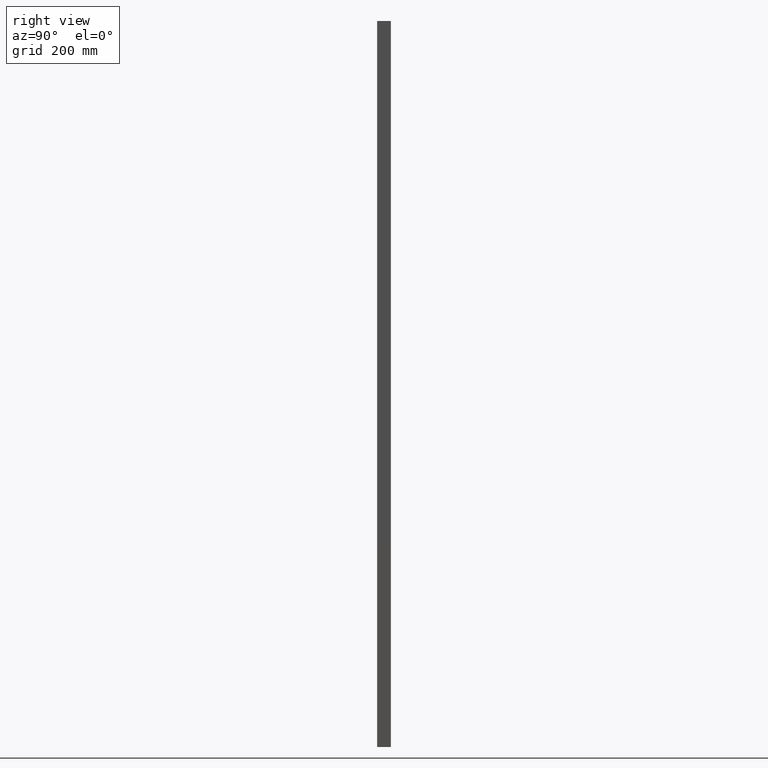
[diagram: clean part render]
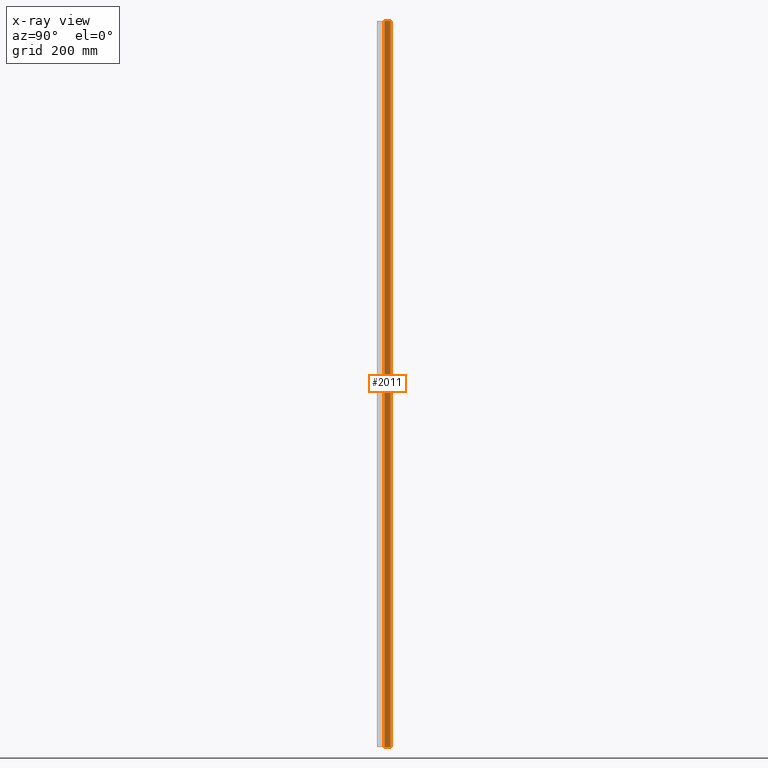
[diagram: x-ray — body ghosted, one internal face saturated and labeled with its STEP entity id]
A machine part, right view, then the same camera in x-ray: the body is ghosted and one INTERNAL B-rep face — a face not visible from any outside direction — is saturated and labeled: STEP entity #2011.
In plain terms, the highlighted planar face has unit normal (-0.9866, 0.1634, 0).
Its self-contained STEP definition (entity closure, byte-faithful):
#1487=DIRECTION('',(-1.634351634020E-1,-9.865540772628E-1,0.E0));
#1488=VECTOR('',#1487,1.682624438192E1);
#1489=CARTESIAN_POINT('',(-1.1725E2,3.65028E1,0.E0));
#1490=LINE('',#1489,#1488);
#1543=DIRECTION('',(0.E0,0.E0,-1.E0));
#1544=VECTOR('',#1543,2.E3);
#1545=CARTESIAN_POINT('',(-1.1725E2,3.65028E1,0.E0));
#1546=LINE('',#1545,#1544);
#1547=DIRECTION('',(0.E0,0.E0,-1.E0));
#1548=VECTOR('',#1547,2.E3);
#1549=CARTESIAN_POINT('',(-1.2E2,1.99028E1,0.E0));
#1550=LINE('',#1549,#1548);
#1639=DIRECTION('',(-1.634351634020E-1,-9.865540772628E-1,0.E0));
#1640=VECTOR('',#1639,1.682624438192E1);
#1641=CARTESIAN_POINT('',(-1.1725E2,3.65028E1,-2.E3));
#1642=LINE('',#1641,#1640);
#1807=CARTESIAN_POINT('',(-1.1725E2,3.65028E1,0.E0));
#1808=VERTEX_POINT('',#1807);
#1809=CARTESIAN_POINT('',(-1.2E2,1.99028E1,0.E0));
#1810=VERTEX_POINT('',#1809);
#1823=CARTESIAN_POINT('',(-1.1725E2,3.65028E1,-2.E3));
#1824=VERTEX_POINT('',#1823);
#1825=CARTESIAN_POINT('',(-1.2E2,1.99028E1,-2.E3));
#1826=VERTEX_POINT('',#1825);
#1998=CARTESIAN_POINT('',(-1.1725E2,3.65028E1,0.E0));
#1999=DIRECTION('',(-9.865540772628E-1,1.634351634020E-1,0.E0));
#2000=DIRECTION('',(-1.634351634020E-1,-9.865540772628E-1,0.E0));
#2001=AXIS2_PLACEMENT_3D('',#1998,#1999,#2000);
#2002=PLANE('',#2001);
#2003=ORIENTED_EDGE('',*,*,#1882,.T.);
#2005=ORIENTED_EDGE('',*,*,#2004,.T.);
#2007=ORIENTED_EDGE('',*,*,#2006,.F.);
#2008=ORIENTED_EDGE('',*,*,#1990,.F.);
#2009=EDGE_LOOP('',(#2003,#2005,#2007,#2008));
#2010=FACE_OUTER_BOUND('',#2009,.F.);
#1882=EDGE_CURVE('',#1808,#1810,#1490,.T.);
#1990=EDGE_CURVE('',#1808,#1824,#1546,.T.);
#2004=EDGE_CURVE('',#1810,#1826,#1550,.T.);
#2006=EDGE_CURVE('',#1824,#1826,#1642,.T.);
#2011=ADVANCED_FACE('',(#2010),#2002,.T.);